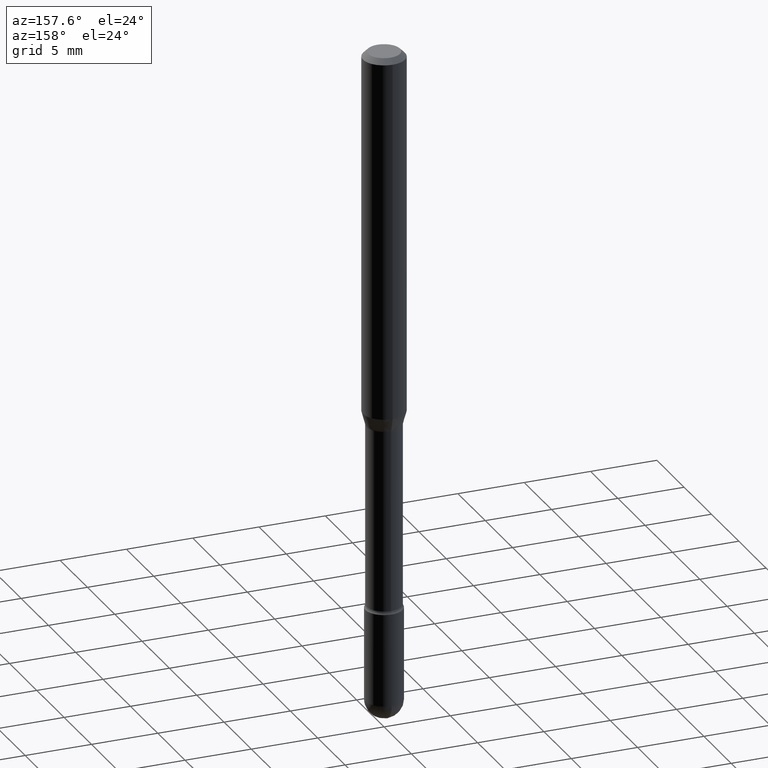
[diagram: clean part render]
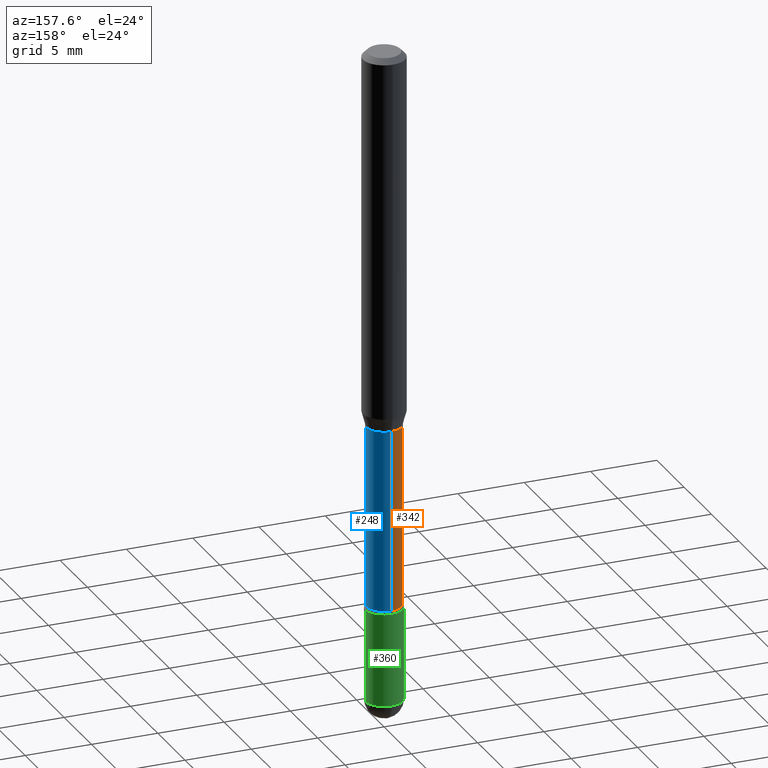
[diagram: same view with three faces highlighted in distinct colors, each labeled with its STEP entity id]
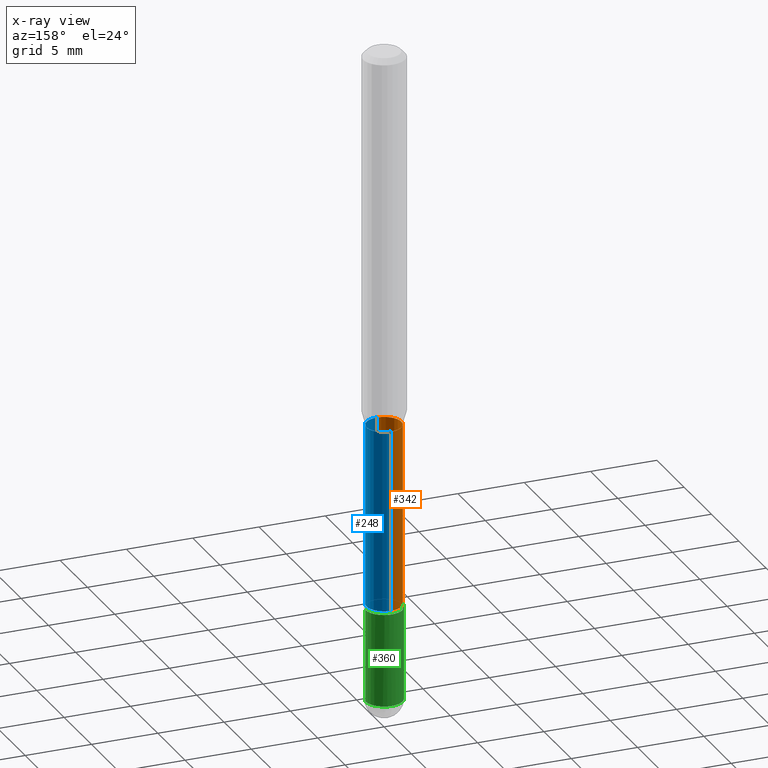
[diagram: x-ray of the same camera — body ghosted, the three highlighted faces saturated]
A machine part, auxiliary view with three faces highlighted in distinct colors.
The next image is the same camera in x-ray (body ghosted, the three faces saturated) — at least one of them is partly hidden behind the body in this view.
Their STEP definitions:

[orange] entity #342 — the highlighted cylindrical surface (edge-blend (fillet) strip) has radius 1.3132 mm, axis along (-0, 0, 1).
#16 = CIRCLE ( 'NONE', #94, 0.05169999999999999596 ) ;
#28 = CARTESIAN_POINT ( 'NONE',  ( 4.060885585943542654E-29, -5.798132775947381421E-15, -1.660613307291702645 ) ) ;
#29 = AXIS2_PLACEMENT_3D ( 'NONE', #28, #558, #527 ) ;
#39 = DIRECTION ( 'NONE',  ( -6.982962677686264344E-15, -1.000000000000000000, 3.491561069929980001E-15 ) ) ;
#42 = CARTESIAN_POINT ( 'NONE',  ( -3.610191704363393772E-16, -0.05170000000000580381, -1.660613307291702423 ) ) ;
#72 = CARTESIAN_POINT ( 'NONE',  ( 2.743691877090031832E-29, -3.917443489351605416E-15, -1.121974787463810630 ) ) ;
#78 = CARTESIAN_POINT ( 'NONE',  ( 3.673505943880124923E-16, 0.05169999999999608242, -1.121974787463810630 ) ) ;
#94 = AXIS2_PLACEMENT_3D ( 'NONE', #72, #151, #331 ) ;
#120 = CYLINDRICAL_SURFACE ( 'NONE', #166, 0.05170000000000000984 ) ;
#122 = DIRECTION ( 'NONE',  ( -2.445413130264774839E-29, 3.491561069929980396E-15, 1.000000000000000000 ) ) ;
#126 = FACE_OUTER_BOUND ( 'NONE', #205, .T. ) ;
#151 = DIRECTION ( 'NONE',  ( -2.445413130264774558E-29, 3.491561069929980790E-15, 1.000000000000000000 ) ) ;
#166 = AXIS2_PLACEMENT_3D ( 'NONE', #306, #564, #39 ) ;
#170 = CARTESIAN_POINT ( 'NONE',  ( -3.610191704363799542E-16, -0.05170000000000000984, 6.585871062066260087E-16 ) ) ;
#180 = ORIENTED_EDGE ( 'NONE', *, *, #472, .F. ) ;
#205 = EDGE_LOOP ( 'NONE', ( #210, #464, #561, #180 ) ) ;
#207 = CARTESIAN_POINT ( 'NONE',  ( 3.790745495280543333E-16, 0.05169999999999420892, -1.660613307291702867 ) ) ;
#208 = CIRCLE ( 'NONE', #29, 0.05170000000000000984 ) ;
#210 = ORIENTED_EDGE ( 'NONE', *, *, #408, .F. ) ;
#214 = VERTEX_POINT ( 'NONE', #42 ) ;
#228 = EDGE_CURVE ( 'NONE', #254, #214, #208, .T. ) ;
#233 = EDGE_CURVE ( 'NONE', #214, #247, #517, .T. ) ;
#247 = VERTEX_POINT ( 'NONE', #431 ) ;
#254 = VERTEX_POINT ( 'NONE', #207 ) ;
#306 = CARTESIAN_POINT ( 'NONE',  ( -1.169113584055446105E-44, 1.669184350826100908E-30, 4.780733988912460139E-16 ) ) ;
#310 = VECTOR ( 'NONE', #397, 39.37007874015748143 ) ;
#331 = DIRECTION ( 'NONE',  ( -6.982962677686266711E-15, -1.000000000000000000, 2.642019336232363246E-15 ) ) ;
#342 = ADVANCED_FACE ( 'NONE', ( #126 ), #120, .T. ) ;
#358 = VECTOR ( 'NONE', #122, 39.37007874015748143 ) ;
#385 = VERTEX_POINT ( 'NONE', #78 ) ;
#397 = DIRECTION ( 'NONE',  ( -2.445413130264774839E-29, 3.491561069929980396E-15, 1.000000000000000000 ) ) ;
#408 = EDGE_CURVE ( 'NONE', #254, #385, #439, .T. ) ;
#431 = CARTESIAN_POINT ( 'NONE',  ( -3.610191704363525413E-16, -0.05170000000000391643, -1.121974787463810408 ) ) ;
#439 = LINE ( 'NONE', #442, #310 ) ;
#442 = CARTESIAN_POINT ( 'NONE',  ( 3.673505943879717674E-16, 0.05170000000000000984, 2.975596915758660684E-16 ) ) ;
#464 = ORIENTED_EDGE ( 'NONE', *, *, #228, .T. ) ;
#472 = EDGE_CURVE ( 'NONE', #385, #247, #16, .T. ) ;
#517 = LINE ( 'NONE', #170, #358 ) ;
#527 = DIRECTION ( 'NONE',  ( -6.982962677686264344E-15, -1.000000000000000000, 5.284038672464724914E-15 ) ) ;
#558 = DIRECTION ( 'NONE',  ( -2.445413130264774558E-29, 3.491561069929980790E-15, 1.000000000000000000 ) ) ;
#561 = ORIENTED_EDGE ( 'NONE', *, *, #233, .T. ) ;
#564 = DIRECTION ( 'NONE',  ( -2.445413130264774558E-29, 3.491561069929980790E-15, 1.000000000000000000 ) ) ;

[blue] entity #248 — the highlighted cylindrical surface (edge-blend (fillet) strip) has radius 1.3132 mm, axis along (-0, 0, 1).
#7 = EDGE_CURVE ( 'NONE', #247, #385, #474, .T. ) ;
#10 = AXIS2_PLACEMENT_3D ( 'NONE', #177, #353, #524 ) ;
#36 = CYLINDRICAL_SURFACE ( 'NONE', #10, 0.05170000000000000984 ) ;
#42 = CARTESIAN_POINT ( 'NONE',  ( -3.610191704363393772E-16, -0.05170000000000580381, -1.660613307291702423 ) ) ;
#78 = CARTESIAN_POINT ( 'NONE',  ( 3.673505943880124923E-16, 0.05169999999999608242, -1.121974787463810630 ) ) ;
#87 = CARTESIAN_POINT ( 'NONE',  ( 4.060885585943542654E-29, -5.798132775947381421E-15, -1.660613307291702645 ) ) ;
#103 = ORIENTED_EDGE ( 'NONE', *, *, #7, .F. ) ;
#118 = EDGE_LOOP ( 'NONE', ( #563, #475, #103, #323 ) ) ;
#122 = DIRECTION ( 'NONE',  ( -2.445413130264774839E-29, 3.491561069929980396E-15, 1.000000000000000000 ) ) ;
#129 = DIRECTION ( 'NONE',  ( -6.982962677686266711E-15, -1.000000000000000000, 2.642019336232363246E-15 ) ) ;
#163 = EDGE_CURVE ( 'NONE', #214, #254, #413, .T. ) ;
#170 = CARTESIAN_POINT ( 'NONE',  ( -3.610191704363799542E-16, -0.05170000000000000984, 6.585871062066260087E-16 ) ) ;
#177 = CARTESIAN_POINT ( 'NONE',  ( -1.169113584055446105E-44, 1.669184350826100908E-30, 4.780733988912460139E-16 ) ) ;
#207 = CARTESIAN_POINT ( 'NONE',  ( 3.790745495280543333E-16, 0.05169999999999420892, -1.660613307291702867 ) ) ;
#214 = VERTEX_POINT ( 'NONE', #42 ) ;
#223 = DIRECTION ( 'NONE',  ( -2.445413130264774558E-29, 3.491561069929980790E-15, 1.000000000000000000 ) ) ;
#233 = EDGE_CURVE ( 'NONE', #214, #247, #517, .T. ) ;
#247 = VERTEX_POINT ( 'NONE', #431 ) ;
#248 = ADVANCED_FACE ( 'NONE', ( #308 ), #36, .T. ) ;
#254 = VERTEX_POINT ( 'NONE', #207 ) ;
#307 = CARTESIAN_POINT ( 'NONE',  ( 2.743691877090031832E-29, -3.917443489351605416E-15, -1.121974787463810630 ) ) ;
#308 = FACE_OUTER_BOUND ( 'NONE', #118, .T. ) ;
#310 = VECTOR ( 'NONE', #397, 39.37007874015748143 ) ;
#323 = ORIENTED_EDGE ( 'NONE', *, *, #233, .F. ) ;
#334 = AXIS2_PLACEMENT_3D ( 'NONE', #307, #354, #129 ) ;
#353 = DIRECTION ( 'NONE',  ( -2.445413130264774558E-29, 3.491561069929980790E-15, 1.000000000000000000 ) ) ;
#354 = DIRECTION ( 'NONE',  ( -2.445413130264774558E-29, 3.491561069929980790E-15, 1.000000000000000000 ) ) ;
#358 = VECTOR ( 'NONE', #122, 39.37007874015748143 ) ;
#385 = VERTEX_POINT ( 'NONE', #78 ) ;
#395 = DIRECTION ( 'NONE',  ( -6.982962677686264344E-15, -1.000000000000000000, 5.284038672464724914E-15 ) ) ;
#397 = DIRECTION ( 'NONE',  ( -2.445413130264774839E-29, 3.491561069929980396E-15, 1.000000000000000000 ) ) ;
#408 = EDGE_CURVE ( 'NONE', #254, #385, #439, .T. ) ;
#413 = CIRCLE ( 'NONE', #553, 0.05170000000000000984 ) ;
#431 = CARTESIAN_POINT ( 'NONE',  ( -3.610191704363525413E-16, -0.05170000000000391643, -1.121974787463810408 ) ) ;
#439 = LINE ( 'NONE', #442, #310 ) ;
#442 = CARTESIAN_POINT ( 'NONE',  ( 3.673505943879717674E-16, 0.05170000000000000984, 2.975596915758660684E-16 ) ) ;
#474 = CIRCLE ( 'NONE', #334, 0.05169999999999999596 ) ;
#475 = ORIENTED_EDGE ( 'NONE', *, *, #408, .T. ) ;
#517 = LINE ( 'NONE', #170, #358 ) ;
#524 = DIRECTION ( 'NONE',  ( -6.982962677686264344E-15, -1.000000000000000000, 3.491561069929980001E-15 ) ) ;
#553 = AXIS2_PLACEMENT_3D ( 'NONE', #87, #223, #395 ) ;
#563 = ORIENTED_EDGE ( 'NONE', *, *, #163, .T. ) ;

[green] entity #360 — the highlighted cylindrical surface (edge-blend (fillet) strip) has radius 1.397 mm, axis along (-0, 0, 1).
#3 = DIRECTION ( 'NONE',  ( 1.000000000000000000, -6.982962677686262766E-15, 0.000000000000000000 ) ) ;
#38 = EDGE_LOOP ( 'NONE', ( #327, #277, #369, #250, #169 ) ) ;
#44 = EDGE_CURVE ( 'NONE', #203, #90, #546, .T. ) ;
#48 = CARTESIAN_POINT ( 'NONE',  ( 0.000000000000000000, 0.000000000000000000, 0.000000000000000000 ) ) ;
#79 = CARTESIAN_POINT ( 'NONE',  ( 0.05500000000000000028, -3.840629472727446888E-16, 2.681897226687764826E-30 ) ) ;
#83 = DIRECTION ( 'NONE',  ( 1.000000000000000000, -6.982962677686262766E-15, 0.000000000000000000 ) ) ;
#85 = LINE ( 'NONE', #265, #229 ) ;
#88 = AXIS2_PLACEMENT_3D ( 'NONE', #486, #274, #83 ) ;
#90 = VERTEX_POINT ( 'NONE', #127 ) ;
#95 = CARTESIAN_POINT ( 'NONE',  ( 0.05500000000000000028, -6.694915467231730455E-15, -1.944999999999999840 ) ) ;
#101 = VECTOR ( 'NONE', #258, 39.37007874015748143 ) ;
#106 = EDGE_CURVE ( 'NONE', #393, #90, #85, .T. ) ;
#127 = CARTESIAN_POINT ( 'NONE',  ( -0.05500000000000000028, -5.920054015290930021E-15, -1.669999999999999929 ) ) ;
#137 = CARTESIAN_POINT ( 'NONE',  ( 4.756436828030090255E-29, -6.790931204049917095E-15, -1.944999999999999840 ) ) ;
#147 = DIRECTION ( 'NONE',  ( 1.000000000000000000, -6.982962677686262766E-15, 0.000000000000000000 ) ) ;
#169 = ORIENTED_EDGE ( 'NONE', *, *, #415, .T. ) ;
#203 = VERTEX_POINT ( 'NONE', #556 ) ;
#221 = DIRECTION ( 'NONE',  ( -2.445468806185136877E-29, 3.491481338843145188E-15, 1.000000000000000000 ) ) ;
#229 = VECTOR ( 'NONE', #221, 39.37007874015748143 ) ;
#231 = CIRCLE ( 'NONE', #414, 0.05500000000000000028 ) ;
#250 = ORIENTED_EDGE ( 'NONE', *, *, #298, .F. ) ;
#255 = CARTESIAN_POINT ( 'NONE',  ( -0.05500000000000000028, -5.920054015290930810E-15, -1.944999999999999840 ) ) ;
#257 = AXIS2_PLACEMENT_3D ( 'NONE', #48, #531, #445 ) ;
#258 = DIRECTION ( 'NONE',  ( -2.445468806185136877E-29, 3.491481338843145188E-15, 1.000000000000000000 ) ) ;
#265 = CARTESIAN_POINT ( 'NONE',  ( -0.05500000000000000028, 3.907985046680551042E-16, -2.705414299640198362E-30 ) ) ;
#274 = DIRECTION ( 'NONE',  ( -2.445468806185136597E-29, 3.491481338843145583E-15, 1.000000000000000000 ) ) ;
#277 = ORIENTED_EDGE ( 'NONE', *, *, #106, .T. ) ;
#298 = EDGE_CURVE ( 'NONE', #515, #203, #304, .T. ) ;
#304 = LINE ( 'NONE', #79, #101 ) ;
#309 = AXIS2_PLACEMENT_3D ( 'NONE', #137, #319, #3 ) ;
#315 = CARTESIAN_POINT ( 'NONE',  ( 4.756436828030090255E-29, -6.790931204049917095E-15, -1.944999999999999840 ) ) ;
#319 = DIRECTION ( 'NONE',  ( -2.445468806185136597E-29, 3.491481338843145583E-15, 1.000000000000000000 ) ) ;
#327 = ORIENTED_EDGE ( 'NONE', *, *, #494, .T. ) ;
#360 = ADVANCED_FACE ( 'NONE', ( #387 ), #381, .T. ) ;
#369 = ORIENTED_EDGE ( 'NONE', *, *, #44, .F. ) ;
#381 = CYLINDRICAL_SURFACE ( 'NONE', #257, 0.05500000000000000028 ) ;
#387 = FACE_OUTER_BOUND ( 'NONE', #38, .T. ) ;
#393 = VERTEX_POINT ( 'NONE', #255 ) ;
#405 = CARTESIAN_POINT ( 'NONE',  ( 3.840629472727923656E-16, 0.05499999999999323486, -1.945000000000000062 ) ) ;
#414 = AXIS2_PLACEMENT_3D ( 'NONE', #315, #448, #147 ) ;
#415 = EDGE_CURVE ( 'NONE', #515, #502, #477, .T. ) ;
#445 = DIRECTION ( 'NONE',  ( 1.000000000000000000, -6.982962677686266711E-15, 4.876176775795935793E-29 ) ) ;
#448 = DIRECTION ( 'NONE',  ( -2.445468806185136597E-29, 3.491481338843145583E-15, 1.000000000000000000 ) ) ;
#477 = CIRCLE ( 'NONE', #309, 0.05500000000000000028 ) ;
#486 = CARTESIAN_POINT ( 'NONE',  ( 4.083932906329177803E-29, -5.830773835868053056E-15, -1.669999999999999929 ) ) ;
#494 = EDGE_CURVE ( 'NONE', #502, #393, #231, .T. ) ;
#502 = VERTEX_POINT ( 'NONE', #405 ) ;
#515 = VERTEX_POINT ( 'NONE', #95 ) ;
#531 = DIRECTION ( 'NONE',  ( -2.445468806185136597E-29, 3.491481338843145583E-15, 1.000000000000000000 ) ) ;
#546 = CIRCLE ( 'NONE', #88, 0.05500000000000000028 ) ;
#556 = CARTESIAN_POINT ( 'NONE',  ( 0.05500000000000000028, -6.214836783140797252E-15, -1.669999999999999929 ) ) ;